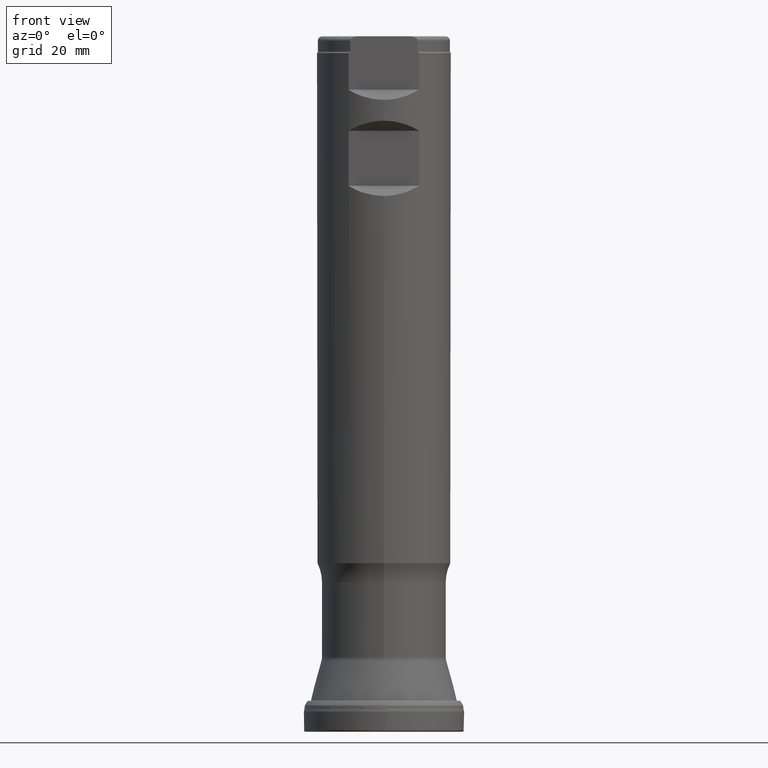
[diagram: clean part render]
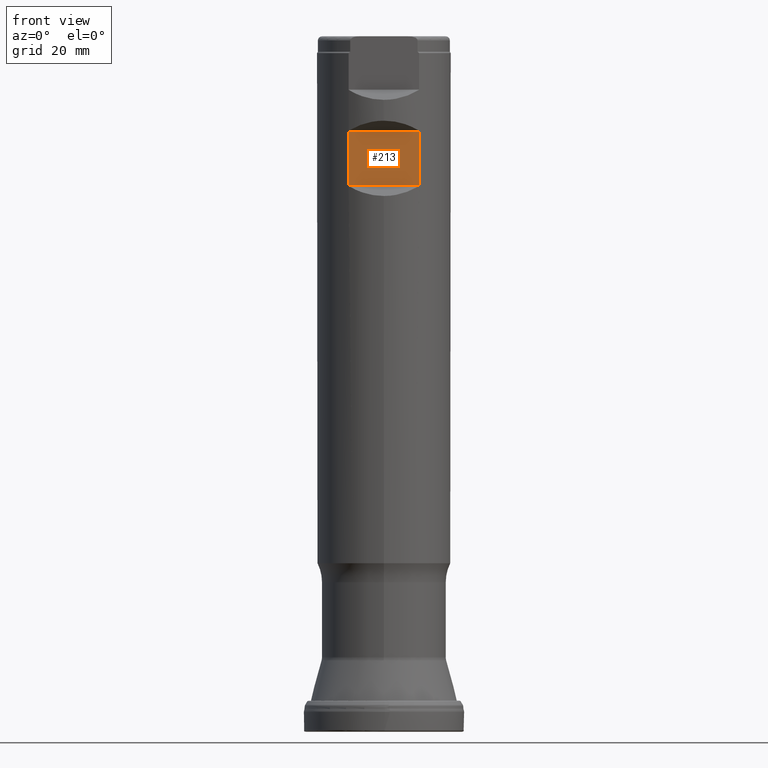
[diagram: same view with one face highlighted and labeled with its STEP entity id]
A machine part, front view. The second image highlights one B-rep face of the part: STEP entity #213.
In plain terms, the highlighted planar face has unit normal (0, -1, 0).
Its self-contained STEP definition (entity closure, byte-faithful):
#167=PLANE('',#861);
#183=FACE_OUTER_BOUND('',#413,.T.);
#213=ADVANCED_FACE('',(#183),#167,.T.);
#413=EDGE_LOOP('',(#580,#581,#582,#583));
#459=LINE('',#1312,#478);
#460=LINE('',#1344,#479);
#469=LINE('',#1482,#488);
#470=LINE('',#1483,#489);
#478=VECTOR('',#890,1.);
#479=VECTOR('',#893,1.);
#488=VECTOR('',#998,1.);
#489=VECTOR('',#999,1.);
#580=ORIENTED_EDGE('',*,*,#740,.T.);
#581=ORIENTED_EDGE('',*,*,#703,.F.);
#582=ORIENTED_EDGE('',*,*,#741,.T.);
#583=ORIENTED_EDGE('',*,*,#699,.F.);
#637=VERTEX_POINT('',#1295);
#639=VERTEX_POINT('',#1311);
#640=VERTEX_POINT('',#1313);
#643=VERTEX_POINT('',#1343);
#699=EDGE_CURVE('',#639,#640,#459,.T.);
#703=EDGE_CURVE('',#643,#637,#460,.T.);
#740=EDGE_CURVE('',#639,#637,#469,.T.);
#741=EDGE_CURVE('',#643,#640,#470,.T.);
#861=AXIS2_PLACEMENT_3D('',#1484,#1000,#1001);
#890=DIRECTION('',(0.,-1.17145536458252E-15,-1.));
#893=DIRECTION('',(0.,1.17145536458252E-15,1.));
#998=DIRECTION('',(-1.,1.37230767120917E-30,1.17145536458252E-15));
#999=DIRECTION('',(1.,-1.37230767120917E-30,-1.17145536458252E-15));
#1000=DIRECTION('',(0.,-1.,1.17145536458252E-15));
#1001=DIRECTION('',(1.17267306976032E-15,1.17093834628434E-15,1.));
#1295=CARTESIAN_POINT('',(-8.37291264972948,-13.4873999999998,142.557060931288));
#1311=CARTESIAN_POINT('',(8.37291264972948,-13.4873999999998,142.557060931288));
#1312=CARTESIAN_POINT('',(8.37291264972948,-13.4874,1.57998870842703E-14));
#1313=CARTESIAN_POINT('',(8.37291264972948,-13.4873999999998,129.699189068712));
#1343=CARTESIAN_POINT('',(-8.37291264972948,-13.4873999999998,129.699189068712));
#1344=CARTESIAN_POINT('',(-8.37291264972948,-13.4874,1.57998870842703E-14));
#1482=CARTESIAN_POINT('',(-17.5,-13.4873999999998,142.557060931288));
#1483=CARTESIAN_POINT('',(-17.5,-13.4873999999998,129.699189068712));
#1484=CARTESIAN_POINT('',(-17.5,-13.4873999999998,142.681325));